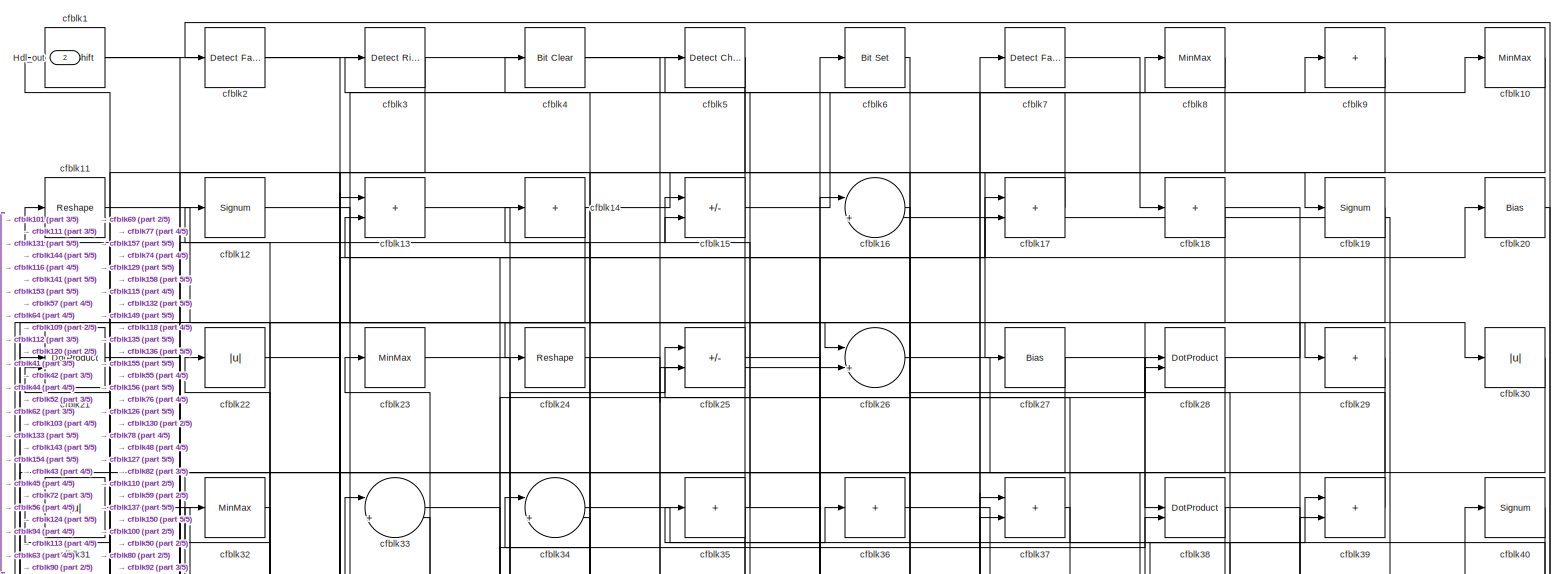
[diagram: root canvas - part 1/5, full width, top band]
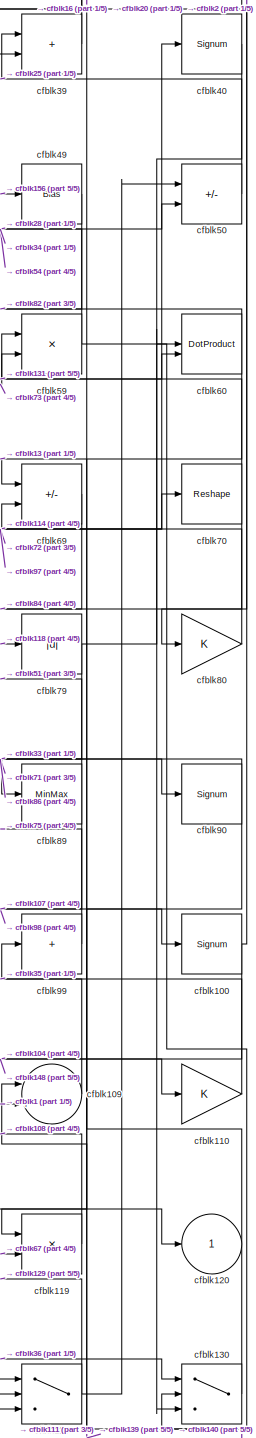
[diagram: root canvas - part 2/5, middle right region]
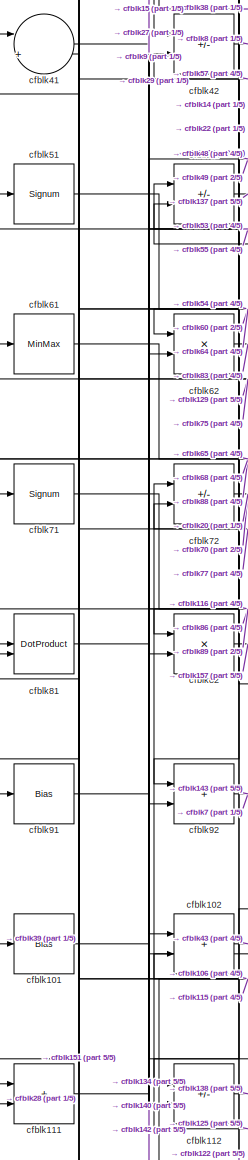
[diagram: root canvas - part 3/5, middle left region]
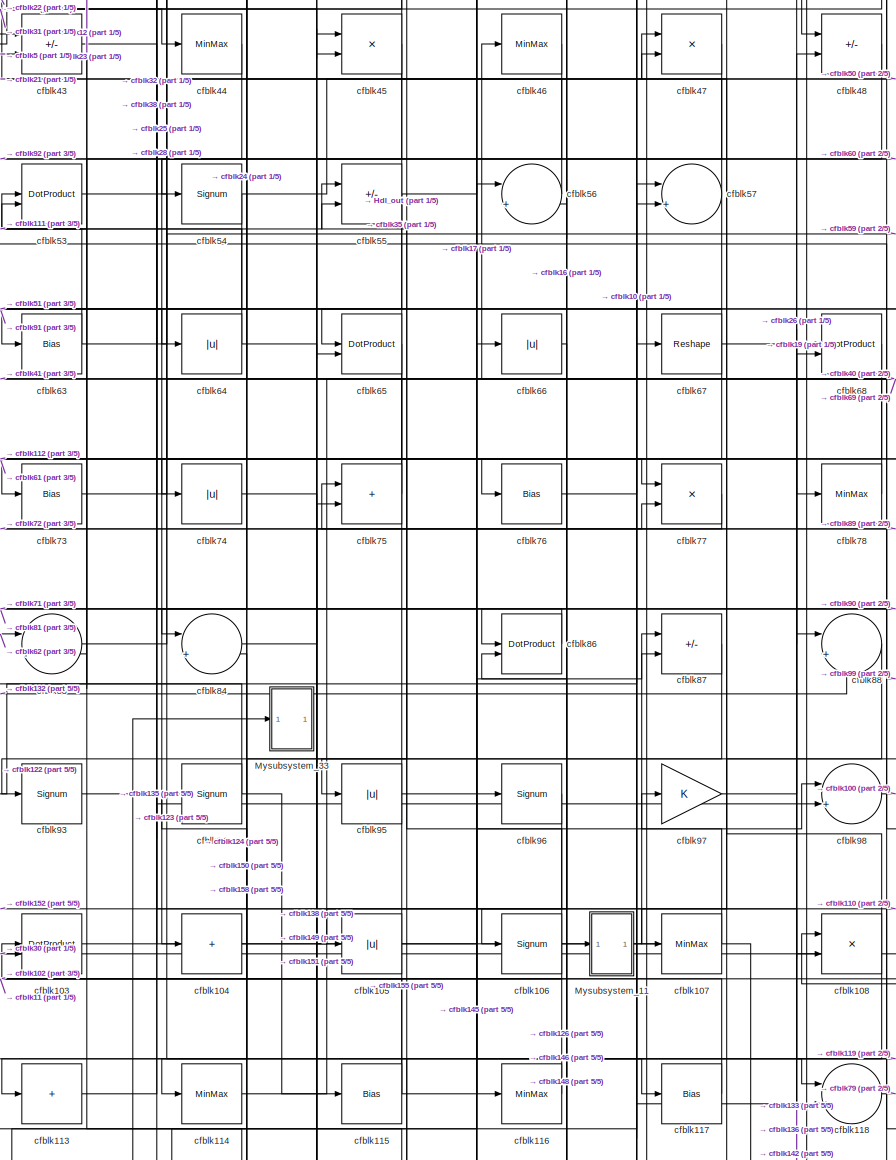
[diagram: root canvas - part 4/5, central region]
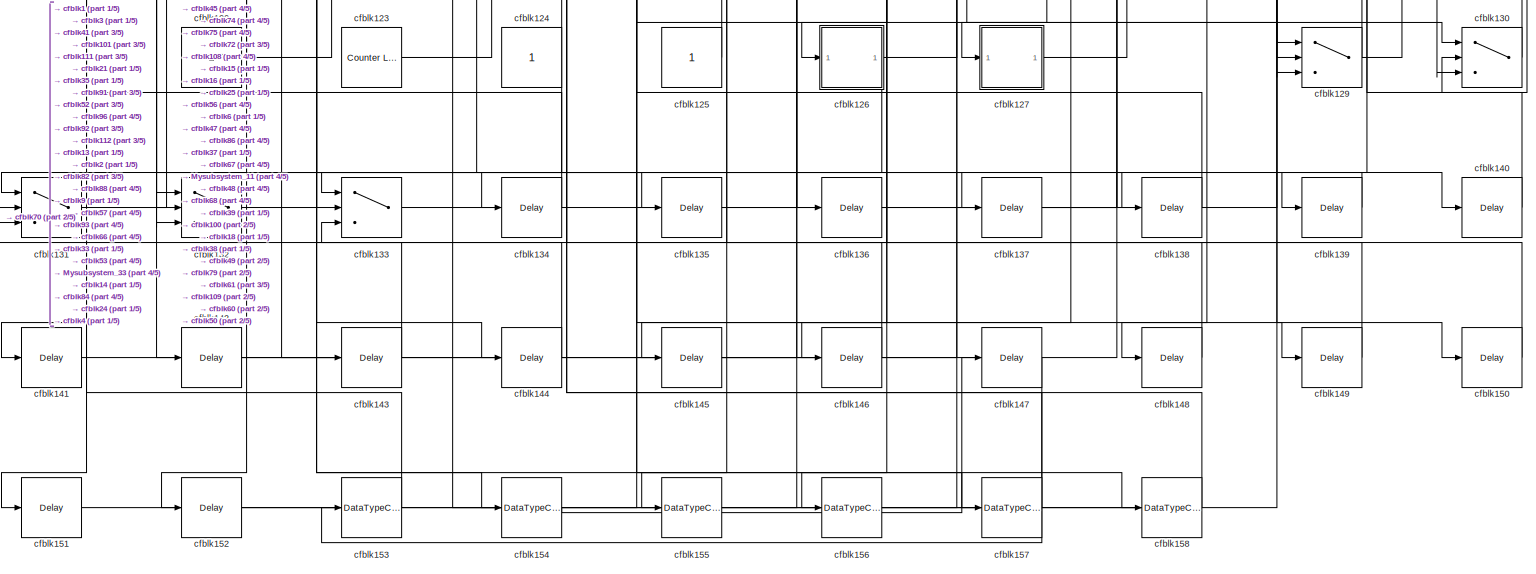
[diagram: root canvas - part 5/5, full width, bottom band]
MODEL slx_87eb45cc0dff
KIND model
CONFIG AbsTol = auto
CONFIG EnableMultiTasking = off
CONFIG FixedStep = auto
CONFIG MaxStep = auto
CONFIG MinStep = auto
CONFIG RelTol = 1e-3
CONFIG SampleTimeConstraint = Unconstrained
CONFIG SolverName = VariableStepAuto
CONFIG StartTime = 0.0
CONFIG StopTime = 10.0
BLOCK [Outport] Hdl_out
  OutDataTypeStr = uint8
  Port = 2
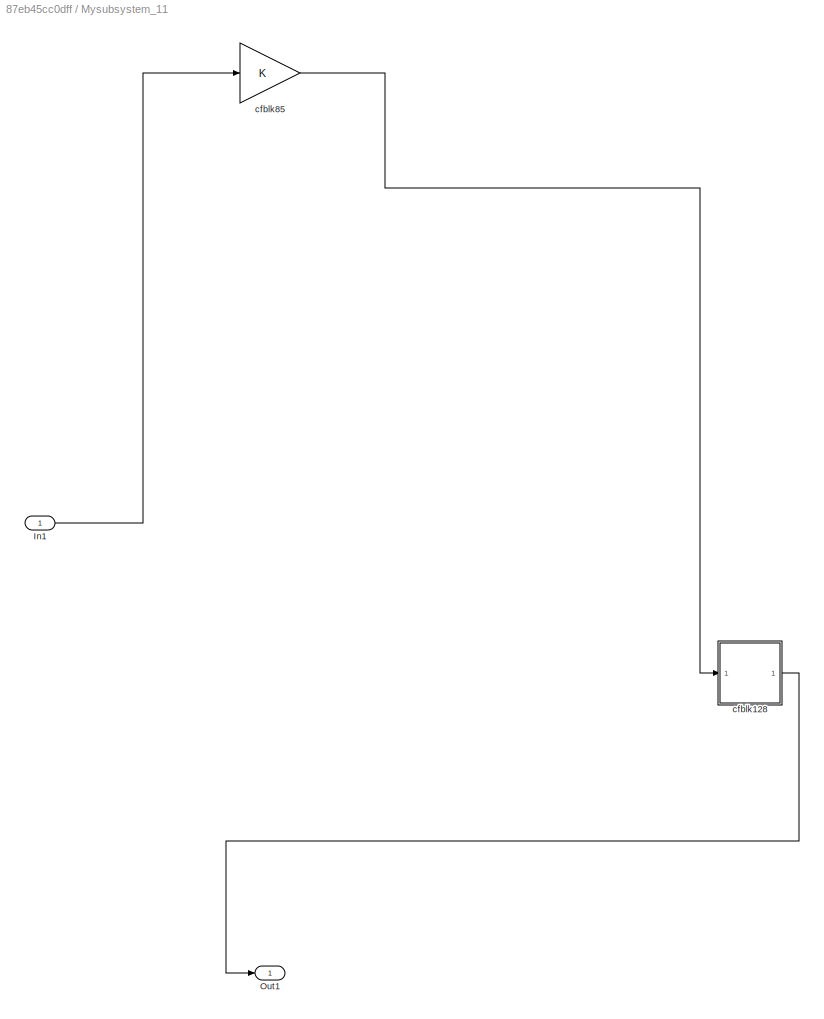
BLOCK [SubSystem] Mysubsystem_11
  RTWFcnName = Mysubsystem_11
  RTWFcnNameOpts = User specified
  RTWFileNameOpts = Use function name
  RTWSystemCode = Reusable function
  TreatAsAtomicUnit = on
BLOCK [Inport] Mysubsystem_11/In1
BLOCK [Outport] Mysubsystem_11/Out1
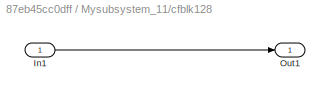
BLOCK [SubSystem] Mysubsystem_11/cfblk128
  LibrarySourceBlock = hdlsllib/Ports &\nSubsystems/Subsystem
BLOCK [Inport] Mysubsystem_11/cfblk128/In1
BLOCK [Outport] Mysubsystem_11/cfblk128/Out1
BLOCK [Gain] Mysubsystem_11/cfblk85
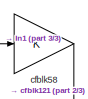
[diagram: Mysubsystem_33 - part 1/3, top right region]
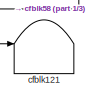
[diagram: Mysubsystem_33 - part 2/3, bottom left region]
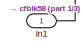
[diagram: Mysubsystem_33 - part 3/3, bottom right region]
BLOCK [SubSystem] Mysubsystem_33
  RTWFcnName = Mysubsystem_33
  RTWFcnNameOpts = User specified
  RTWFileNameOpts = Use function name
  RTWSystemCode = Reusable function
  TreatAsAtomicUnit = on
BLOCK [Inport] Mysubsystem_33/In1
BLOCK [Terminator] Mysubsystem_33/cfblk121
BLOCK [Gain] Mysubsystem_33/cfblk58
BLOCK [ArithShift] cfblk1
  BitShiftNumber = 8
  InputPortMap = u0
BLOCK [MinMax] cfblk10
  OutDataTypeStr = uint8
BLOCK [Signum] cfblk100
BLOCK [Bias] cfblk101
  Bias = 0.0
  SaturateOnIntegerOverflow = off
BLOCK [Sum] cfblk102
  IconShape = rectangular
  OutDataTypeStr = uint8
BLOCK [DotProduct] cfblk103
  OutDataTypeStr = uint8
BLOCK [Sum] cfblk104
  IconShape = rectangular
  Inputs = +
  OutDataTypeStr = uint8
BLOCK [Abs] cfblk105
  OutDataTypeStr = uint8
  SaturateOnIntegerOverflow = off
BLOCK [Signum] cfblk106
BLOCK [MinMax] cfblk107
  OutDataTypeStr = uint8
BLOCK [Product] cfblk108
  Inputs = */
  OutDataTypeStr = uint8
  RndMeth = Zero
  SaturateOnIntegerOverflow = on
BLOCK [Sum] cfblk109
  Inputs = |++
  OutDataTypeStr = uint8
BLOCK [Reshape] cfblk11
BLOCK [Gain] cfblk110
  OutDataTypeStr = uint8
BLOCK [Sum] cfblk111
  IconShape = rectangular
  OutDataTypeStr = uint8
BLOCK [Sum] cfblk112
  IconShape = rectangular
  Inputs = +-
  OutDataTypeStr = uint8
BLOCK [Sum] cfblk113
  IconShape = rectangular
  Inputs = +
  OutDataTypeStr = uint8
BLOCK [MinMax] cfblk114
  OutDataTypeStr = uint8
BLOCK [Bias] cfblk115
  Bias = 0.0
  SaturateOnIntegerOverflow = off
BLOCK [MinMax] cfblk116
  OutDataTypeStr = uint8
BLOCK [Bias] cfblk117
  Bias = 0.0
  SaturateOnIntegerOverflow = off
BLOCK [Sum] cfblk118
  Inputs = |++
  OutDataTypeStr = uint8
BLOCK [Product] cfblk119
  Inputs = */
  OutDataTypeStr = uint8
  RndMeth = Zero
  SaturateOnIntegerOverflow = on
BLOCK [Signum] cfblk12
BLOCK [Outport] cfblk120
  OutDataTypeStr = uint8
  VectorParamsAs1DForOutWhenUnconnected = off
BLOCK [Ground] cfblk122
BLOCK [Reference] cfblk123  REF=hdlsllib/Sources/Counter
Limited
  SourceBlock = hdlsllib/Sources/Counter\nLimited
  SourceType = Counter Limited
BLOCK [Constant] cfblk124
  OutDataTypeStr = uint8
  SampleTime = -1
BLOCK [Constant] cfblk125
  OutDataTypeStr = uint8
  SampleTime = -1
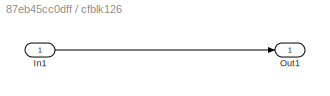
BLOCK [SubSystem] cfblk126
  LibrarySourceBlock = hdlsllib/Ports &\nSubsystems/Subsystem
BLOCK [Inport] cfblk126/In1
BLOCK [Outport] cfblk126/Out1
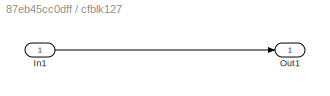
BLOCK [SubSystem] cfblk127
  LibrarySourceBlock = hdlsllib/Ports &\nSubsystems/Subsystem
BLOCK [Inport] cfblk127/In1
BLOCK [Outport] cfblk127/Out1
BLOCK [Switch] cfblk129
  InputSameDT = off
  OutDataTypeStr = uint8
  SaturateOnIntegerOverflow = off
BLOCK [Sum] cfblk13
  IconShape = rectangular
  OutDataTypeStr = uint8
BLOCK [Switch] cfblk130
  InputSameDT = off
  OutDataTypeStr = uint8
  SaturateOnIntegerOverflow = off
BLOCK [Switch] cfblk131
  InputSameDT = off
  OutDataTypeStr = uint8
  SaturateOnIntegerOverflow = off
BLOCK [Switch] cfblk132
  InputSameDT = off
  OutDataTypeStr = uint8
  SaturateOnIntegerOverflow = off
BLOCK [Switch] cfblk133
  InputSameDT = off
  OutDataTypeStr = uint8
  SaturateOnIntegerOverflow = off
BLOCK [Delay] cfblk134
  InputPortMap = u0
  SampleTime = 1
BLOCK [Delay] cfblk135
  InputPortMap = u0
  SampleTime = 1
BLOCK [Delay] cfblk136
  InputPortMap = u0
  SampleTime = 1
BLOCK [Delay] cfblk137
  InputPortMap = u0
  SampleTime = 1
BLOCK [Delay] cfblk138
  InputPortMap = u0
  SampleTime = 1
BLOCK [Delay] cfblk139
  InputPortMap = u0
  SampleTime = 1
BLOCK [Sum] cfblk14
  IconShape = rectangular
  Inputs = +
  OutDataTypeStr = uint8
BLOCK [Delay] cfblk140
  InputPortMap = u0
  SampleTime = 1
BLOCK [Delay] cfblk141
  InputPortMap = u0
  SampleTime = 1
BLOCK [Delay] cfblk142
  InputPortMap = u0
  SampleTime = 1
BLOCK [Delay] cfblk143
  InputPortMap = u0
  SampleTime = 1
BLOCK [Delay] cfblk144
  InputPortMap = u0
  SampleTime = 1
BLOCK [Delay] cfblk145
  InputPortMap = u0
  SampleTime = 1
BLOCK [Delay] cfblk146
  InputPortMap = u0
  SampleTime = 1
BLOCK [Delay] cfblk147
  InputPortMap = u0
  SampleTime = 1
BLOCK [Delay] cfblk148
  InputPortMap = u0
  SampleTime = 1
BLOCK [Delay] cfblk149
  InputPortMap = u0
  SampleTime = 1
BLOCK [Sum] cfblk15
  IconShape = rectangular
  Inputs = +-
  OutDataTypeStr = uint8
BLOCK [Delay] cfblk150
  InputPortMap = u0
  SampleTime = 1
BLOCK [Delay] cfblk151
  InputPortMap = u0
  SampleTime = 1
BLOCK [Delay] cfblk152
  InputPortMap = u0
  SampleTime = 1
BLOCK [DataTypeConversion] cfblk153
  OutDataTypeStr = uint8
  RndMeth = Floor
  SaturateOnIntegerOverflow = off
BLOCK [DataTypeConversion] cfblk154
  OutDataTypeStr = uint8
  RndMeth = Floor
  SaturateOnIntegerOverflow = off
BLOCK [DataTypeConversion] cfblk155
  OutDataTypeStr = uint8
  RndMeth = Floor
  SaturateOnIntegerOverflow = off
BLOCK [DataTypeConversion] cfblk156
  OutDataTypeStr = uint8
  RndMeth = Floor
  SaturateOnIntegerOverflow = off
BLOCK [DataTypeConversion] cfblk157
  OutDataTypeStr = uint8
  RndMeth = Floor
  SaturateOnIntegerOverflow = off
BLOCK [DataTypeConversion] cfblk158
  OutDataTypeStr = uint8
  RndMeth = Floor
  SaturateOnIntegerOverflow = off
BLOCK [Sum] cfblk16
  Inputs = |++
  OutDataTypeStr = uint8
BLOCK [Sum] cfblk17
  IconShape = rectangular
  OutDataTypeStr = uint8
BLOCK [Sum] cfblk18
  IconShape = rectangular
  Inputs = +
  OutDataTypeStr = uint8
BLOCK [Signum] cfblk19
BLOCK [Reference] cfblk2  REF=hdlsllib/Logic and Bit
Operations/Detect Fall
Negative
  SourceBlock = hdlsllib/Logic and Bit\nOperations/Detect Fall\nNegative
  SourceType = Detect Fall Negative
BLOCK [Bias] cfblk20
  Bias = 0.0
  SaturateOnIntegerOverflow = off
BLOCK [DotProduct] cfblk21
  OutDataTypeStr = uint8
BLOCK [Abs] cfblk22
  OutDataTypeStr = uint8
  SaturateOnIntegerOverflow = off
BLOCK [MinMax] cfblk23
  OutDataTypeStr = uint8
BLOCK [Reshape] cfblk24
BLOCK [Sum] cfblk25
  IconShape = rectangular
  Inputs = +-
  OutDataTypeStr = uint8
BLOCK [Sum] cfblk26
  Inputs = |++
  OutDataTypeStr = uint8
BLOCK [Bias] cfblk27
  Bias = 0.0
  SaturateOnIntegerOverflow = off
BLOCK [DotProduct] cfblk28
  OutDataTypeStr = uint8
BLOCK [Sum] cfblk29
  IconShape = rectangular
  Inputs = +
  OutDataTypeStr = uint8
BLOCK [Reference] cfblk3  REF=hdlsllib/Logic and Bit
Operations/Detect Rise
Positive
  SourceBlock = hdlsllib/Logic and Bit\nOperations/Detect Rise\nPositive
  SourceType = Detect Rise Positive
BLOCK [Abs] cfblk30
  OutDataTypeStr = uint8
  SaturateOnIntegerOverflow = off
BLOCK [Abs] cfblk31
  OutDataTypeStr = uint8
  SaturateOnIntegerOverflow = off
BLOCK [MinMax] cfblk32
  OutDataTypeStr = uint8
BLOCK [Sum] cfblk33
  Inputs = |++
  OutDataTypeStr = uint8
BLOCK [Sum] cfblk34
  Inputs = |++
  OutDataTypeStr = uint8
BLOCK [Sum] cfblk35
  IconShape = rectangular
  Inputs = +
  OutDataTypeStr = uint8
BLOCK [Sum] cfblk36
  IconShape = rectangular
  Inputs = +
  OutDataTypeStr = uint8
BLOCK [Sum] cfblk37
  IconShape = rectangular
  OutDataTypeStr = uint8
BLOCK [DotProduct] cfblk38
  OutDataTypeStr = uint8
BLOCK [Sum] cfblk39
  IconShape = rectangular
  OutDataTypeStr = uint8
BLOCK [Reference] cfblk4  REF=simulink/Logic and Bit
Operations/Bit Clear
  LibrarySourceBlock = hdlsllib/Logic and Bit\nOperations/Bit Clear
  SourceBlock = simulink/Logic and Bit\nOperations/Bit Clear
  SourceType = Bit Clear
BLOCK [Signum] cfblk40
BLOCK [Sum] cfblk41
  Inputs = |++
  OutDataTypeStr = uint8
BLOCK [Sum] cfblk42
  IconShape = rectangular
  Inputs = +-
  OutDataTypeStr = uint8
BLOCK [Sum] cfblk43
  IconShape = rectangular
  Inputs = +-
  OutDataTypeStr = uint8
BLOCK [MinMax] cfblk44
  OutDataTypeStr = uint8
BLOCK [Product] cfblk45
  Inputs = */
  OutDataTypeStr = uint8
  RndMeth = Zero
  SaturateOnIntegerOverflow = on
BLOCK [MinMax] cfblk46
  OutDataTypeStr = uint8
BLOCK [Product] cfblk47
  Inputs = */
  OutDataTypeStr = uint8
  RndMeth = Zero
  SaturateOnIntegerOverflow = on
BLOCK [Sum] cfblk48
  IconShape = rectangular
  Inputs = +-
  OutDataTypeStr = uint8
BLOCK [Bias] cfblk49
  Bias = 0.0
  SaturateOnIntegerOverflow = off
BLOCK [Reference] cfblk5  REF=simulink/Logic and Bit
Operations/Detect
Change
  LibrarySourceBlock = hdlsllib/Logic and Bit\nOperations/Detect\nChange
  SourceBlock = simulink/Logic and Bit\nOperations/Detect\nChange
  SourceType = Detect Change
BLOCK [Sum] cfblk50
  IconShape = rectangular
  Inputs = +-
  OutDataTypeStr = uint8
BLOCK [Signum] cfblk51
BLOCK [Sum] cfblk52
  IconShape = rectangular
  Inputs = +-
  OutDataTypeStr = uint8
BLOCK [DotProduct] cfblk53
  OutDataTypeStr = uint8
BLOCK [Signum] cfblk54
BLOCK [Sum] cfblk55
  IconShape = rectangular
  Inputs = +-
  OutDataTypeStr = uint8
BLOCK [Sum] cfblk56
  Inputs = |++
  OutDataTypeStr = uint8
BLOCK [Sum] cfblk57
  Inputs = |++
  OutDataTypeStr = uint8
BLOCK [Product] cfblk59
  Inputs = */
  OutDataTypeStr = uint8
  RndMeth = Zero
  SaturateOnIntegerOverflow = on
BLOCK [Reference] cfblk6  REF=simulink/Logic and Bit
Operations/Bit Set
  LibrarySourceBlock = hdlsllib/Logic and Bit\nOperations/Bit Set
  SourceBlock = simulink/Logic and Bit\nOperations/Bit Set
  SourceType = Bit Set
BLOCK [DotProduct] cfblk60
  OutDataTypeStr = uint8
BLOCK [MinMax] cfblk61
  OutDataTypeStr = uint8
BLOCK [Product] cfblk62
  Inputs = */
  OutDataTypeStr = uint8
  RndMeth = Zero
  SaturateOnIntegerOverflow = on
BLOCK [Bias] cfblk63
  Bias = 0.0
  SaturateOnIntegerOverflow = off
BLOCK [Abs] cfblk64
  OutDataTypeStr = uint8
  SaturateOnIntegerOverflow = off
BLOCK [DotProduct] cfblk65
  OutDataTypeStr = uint8
BLOCK [Abs] cfblk66
  OutDataTypeStr = uint8
  SaturateOnIntegerOverflow = off
BLOCK [Reshape] cfblk67
BLOCK [DotProduct] cfblk68
  OutDataTypeStr = uint8
BLOCK [Sum] cfblk69
  IconShape = rectangular
  Inputs = +-
  OutDataTypeStr = uint8
BLOCK [Reference] cfblk7  REF=hdlsllib/Logic and Bit
Operations/Detect Fall
Nonpositive
  SourceBlock = hdlsllib/Logic and Bit\nOperations/Detect Fall\nNonpositive
  SourceType = Detect Fall Nonpositive
BLOCK [Reshape] cfblk70
BLOCK [Signum] cfblk71
BLOCK [Sum] cfblk72
  IconShape = rectangular
  Inputs = +-
  OutDataTypeStr = uint8
BLOCK [Bias] cfblk73
  Bias = 0.0
  SaturateOnIntegerOverflow = off
BLOCK [Abs] cfblk74
  OutDataTypeStr = uint8
  SaturateOnIntegerOverflow = off
BLOCK [Sum] cfblk75
  IconShape = rectangular
  OutDataTypeStr = uint8
BLOCK [Bias] cfblk76
  Bias = 0.0
  SaturateOnIntegerOverflow = off
BLOCK [Product] cfblk77
  Inputs = */
  OutDataTypeStr = uint8
  RndMeth = Zero
  SaturateOnIntegerOverflow = on
BLOCK [MinMax] cfblk78
  OutDataTypeStr = uint8
BLOCK [Abs] cfblk79
  OutDataTypeStr = uint8
  SaturateOnIntegerOverflow = off
BLOCK [MinMax] cfblk8
  OutDataTypeStr = uint8
BLOCK [Gain] cfblk80
  OutDataTypeStr = uint8
BLOCK [DotProduct] cfblk81
  OutDataTypeStr = uint8
BLOCK [Product] cfblk82
  Inputs = */
  OutDataTypeStr = uint8
  RndMeth = Zero
  SaturateOnIntegerOverflow = on
BLOCK [Sum] cfblk83
  Inputs = |++
  OutDataTypeStr = uint8
BLOCK [Sum] cfblk84
  Inputs = |++
  OutDataTypeStr = uint8
BLOCK [DotProduct] cfblk86
  OutDataTypeStr = uint8
BLOCK [Sum] cfblk87
  IconShape = rectangular
  Inputs = +-
  OutDataTypeStr = uint8
BLOCK [Sum] cfblk88
  Inputs = |++
  OutDataTypeStr = uint8
BLOCK [MinMax] cfblk89
  OutDataTypeStr = uint8
BLOCK [Sum] cfblk9
  IconShape = rectangular
  Inputs = +
  OutDataTypeStr = uint8
BLOCK [Signum] cfblk90
BLOCK [Bias] cfblk91
  Bias = 0.0
  SaturateOnIntegerOverflow = off
BLOCK [Sum] cfblk92
  IconShape = rectangular
  OutDataTypeStr = uint8
BLOCK [Signum] cfblk93
BLOCK [Signum] cfblk94
BLOCK [Abs] cfblk95
  OutDataTypeStr = uint8
  SaturateOnIntegerOverflow = off
BLOCK [Signum] cfblk96
BLOCK [Gain] cfblk97
  OutDataTypeStr = uint8
BLOCK [Sum] cfblk98
  Inputs = |++
  OutDataTypeStr = uint8
BLOCK [Sum] cfblk99
  IconShape = rectangular
  Inputs = +
  OutDataTypeStr = uint8
LINE Mysubsystem_11/In1:1 -> Mysubsystem_11/cfblk85:1
LINE Mysubsystem_11/cfblk128/In1:1 -> Mysubsystem_11/cfblk128/Out1:1
LINE Mysubsystem_11/cfblk128:1 -> Mysubsystem_11/Out1:1
LINE Mysubsystem_11/cfblk85:1 -> Mysubsystem_11/cfblk128:1
LINE Mysubsystem_11:1 -> cfblk145:1
LINE Mysubsystem_33/In1:1 -> Mysubsystem_33/cfblk58:1
LINE Mysubsystem_33/cfblk58:1 -> Mysubsystem_33/cfblk121:1
NET cfblk100:1 -> cfblk148:1, cfblk2:1
LINE cfblk101:1 -> cfblk134:1
LINE cfblk102:1 -> cfblk43:1
LINE cfblk103:1 -> cfblk38:2
LINE cfblk104:1 -> cfblk110:1
LINE cfblk105:1 -> cfblk98:1
NET cfblk106:1 -> cfblk102:2, cfblk118:2, cfblk55:2, cfblk87:1
LINE cfblk107:1 -> cfblk97:1
NET cfblk108:1 -> cfblk113:1, cfblk155:1, cfblk47:1
LINE cfblk109:1 -> cfblk99:1
NET cfblk10:1 -> cfblk24:1, cfblk56:2
LINE cfblk110:1 -> cfblk35:1
NET cfblk111:1 -> cfblk140:1, cfblk55:1
LINE cfblk112:1 -> cfblk138:1
NET cfblk113:1 -> Mysubsystem_11:1, cfblk17:2
LINE cfblk114:1 -> cfblk40:1
NET cfblk115:1 -> Hdl_out:1, cfblk81:2, cfblk87:2
NET cfblk116:1 -> cfblk11:1, cfblk94:1
LINE cfblk117:1 -> cfblk103:1
LINE cfblk118:1 -> cfblk79:1
LINE cfblk119:1 -> cfblk108:1
LINE cfblk11:1 -> cfblk29:1
NET cfblk122:1 -> cfblk52:1, cfblk57:1
LINE cfblk123:1 -> cfblk66:1
NET cfblk124:1 -> cfblk133:1, cfblk33:2, cfblk53:2
LINE cfblk125:1 -> cfblk72:1
LINE cfblk126/In1:1 -> cfblk126/Out1:1
NET cfblk126:1 -> cfblk132:3, cfblk37:1
LINE cfblk127/In1:1 -> cfblk127/Out1:1
LINE cfblk127:1 -> cfblk39:1
NET cfblk129:1 -> cfblk50:1, cfblk52:2, cfblk61:1
LINE cfblk12:1 -> cfblk26:1
LINE cfblk130:1 -> cfblk16:2
LINE cfblk131:1 -> cfblk60:2
NET cfblk132:1 -> cfblk144:1, cfblk88:2
LINE cfblk133:1 -> cfblk68:2
LINE cfblk134:1 -> cfblk41:1
LINE cfblk135:1 -> cfblk16:1
LINE cfblk136:1 -> cfblk68:1
LINE cfblk137:1 -> cfblk39:2
LINE cfblk138:1 -> cfblk45:1
LINE cfblk139:1 -> cfblk131:1
LINE cfblk13:1 -> cfblk69:1
LINE cfblk140:1 -> cfblk109:1
LINE cfblk141:1 -> cfblk37:2
LINE cfblk142:1 -> cfblk48:2
LINE cfblk143:1 -> cfblk13:1
LINE cfblk144:1 -> cfblk21:1
LINE cfblk145:1 -> cfblk56:1
LINE cfblk146:1 -> cfblk133:3
LINE cfblk147:1 -> cfblk153:1
LINE cfblk148:1 -> cfblk86:2
LINE cfblk149:1 -> cfblk15:2
NET cfblk14:1 -> cfblk19:1, cfblk62:1
LINE cfblk150:1 -> cfblk84:2
LINE cfblk151:1 -> cfblk75:2
LINE cfblk152:1 -> cfblk67:1
LINE cfblk153:1 -> cfblk1:1
LINE cfblk154:1 -> cfblk147:1
LINE cfblk155:1 -> cfblk6:1
LINE cfblk156:1 -> cfblk49:1
LINE cfblk157:1 -> cfblk4:1
NET cfblk158:1 -> Mysubsystem_33:1, cfblk14:1
LINE cfblk15:1 -> cfblk9:1
LINE cfblk16:1 -> cfblk76:1
LINE cfblk17:1 -> cfblk3:1
NET cfblk18:1 -> cfblk129:1, cfblk131:2
LINE cfblk19:1 -> cfblk48:1
NET cfblk1:1 -> cfblk109:2, cfblk120:1
LINE cfblk20:1 -> cfblk80:1
LINE cfblk21:1 -> cfblk132:1
LINE cfblk22:1 -> cfblk45:2
LINE cfblk23:1 -> cfblk77:1
NET cfblk24:1 -> cfblk129:3, cfblk26:2, cfblk74:1
LINE cfblk25:1 -> cfblk136:1
LINE cfblk26:1 -> cfblk78:1
NET cfblk27:1 -> cfblk38:1, cfblk62:2
NET cfblk28:1 -> cfblk111:2, cfblk30:1
LINE cfblk29:1 -> cfblk42:1
LINE cfblk2:1 -> cfblk154:1
LINE cfblk30:1 -> cfblk103:2
LINE cfblk31:1 -> cfblk44:1
LINE cfblk32:1 -> cfblk42:2
LINE cfblk33:1 -> cfblk90:1
LINE cfblk34:1 -> cfblk36:1
NET cfblk35:1 -> cfblk118:1, cfblk132:2, cfblk5:1
LINE cfblk36:1 -> cfblk130:1
LINE cfblk37:1 -> cfblk127:1
NET cfblk38:1 -> cfblk150:1, cfblk82:1
NET cfblk39:1 -> cfblk101:1, cfblk13:2
LINE cfblk3:1 -> cfblk141:1
LINE cfblk40:1 -> cfblk130:3
NET cfblk41:1 -> cfblk151:1, cfblk15:1
LINE cfblk42:1 -> cfblk8:1
NET cfblk43:1 -> cfblk108:2, cfblk98:2
LINE cfblk44:1 -> cfblk73:1
LINE cfblk45:1 -> cfblk65:2
LINE cfblk46:1 -> cfblk104:1
LINE cfblk47:1 -> cfblk146:1
LINE cfblk48:1 -> cfblk92:1
LINE cfblk49:1 -> cfblk82:2
LINE cfblk4:1 -> cfblk158:1
LINE cfblk50:1 -> cfblk25:1
LINE cfblk51:1 -> cfblk64:1
NET cfblk52:1 -> cfblk137:1, cfblk22:1
LINE cfblk53:1 -> cfblk117:1
NET cfblk54:1 -> cfblk50:2, cfblk91:1
NET cfblk55:1 -> cfblk17:1, cfblk65:1
LINE cfblk56:1 -> cfblk33:1
NET cfblk57:1 -> cfblk21:2, cfblk92:2
NET cfblk59:1 -> cfblk130:2, cfblk28:2, cfblk34:2
LINE cfblk5:1 -> cfblk43:2
NET cfblk60:1 -> cfblk111:1, cfblk139:1, cfblk54:1
LINE cfblk61:1 -> cfblk88:1
LINE cfblk62:1 -> cfblk83:1
NET cfblk63:1 -> cfblk25:2, cfblk28:1, cfblk32:1
NET cfblk64:1 -> cfblk105:1, cfblk31:1
LINE cfblk65:1 -> cfblk112:1
LINE cfblk66:1 -> cfblk106:1
NET cfblk67:1 -> cfblk119:2, cfblk63:1, cfblk83:2, cfblk95:1
NET cfblk68:1 -> cfblk126:1, cfblk71:1
LINE cfblk69:1 -> cfblk84:1
LINE cfblk6:1 -> cfblk156:1
NET cfblk70:1 -> cfblk131:3, cfblk59:2
NET cfblk71:1 -> cfblk116:1, cfblk53:1, cfblk89:1
NET cfblk72:1 -> cfblk20:1, cfblk70:1
NET cfblk73:1 -> cfblk47:2, cfblk59:1
LINE cfblk74:1 -> cfblk149:1
LINE cfblk75:1 -> cfblk41:2
LINE cfblk76:1 -> cfblk10:1
LINE cfblk77:1 -> cfblk72:2
LINE cfblk78:1 -> cfblk46:1
NET cfblk79:1 -> cfblk129:2, cfblk60:1
LINE cfblk7:1 -> cfblk18:1
LINE cfblk80:1 -> cfblk34:1
LINE cfblk81:1 -> cfblk102:1
LINE cfblk82:1 -> cfblk157:1
LINE cfblk83:1 -> cfblk57:2
LINE cfblk84:1 -> cfblk77:2
LINE cfblk86:1 -> cfblk81:1
LINE cfblk87:1 -> cfblk114:1
LINE cfblk88:1 -> cfblk93:1
NET cfblk89:1 -> cfblk107:1, cfblk51:1
LINE cfblk8:1 -> cfblk27:1
NET cfblk90:1 -> cfblk119:1, cfblk86:1
LINE cfblk91:1 -> cfblk142:1
NET cfblk92:1 -> cfblk143:1, cfblk7:1
LINE cfblk93:1 -> cfblk135:1
NET cfblk94:1 -> cfblk115:1, cfblk12:1, cfblk23:1
LINE cfblk95:1 -> cfblk96:1
LINE cfblk96:1 -> cfblk152:1
LINE cfblk97:1 -> cfblk69:2
LINE cfblk98:1 -> cfblk100:1
LINE cfblk99:1 -> cfblk75:1
NET cfblk9:1 -> cfblk112:2, cfblk133:2
note: NET lines group one-source signal fan-out (src -> all destinations, sorted); 1:1 wires keep LINE
